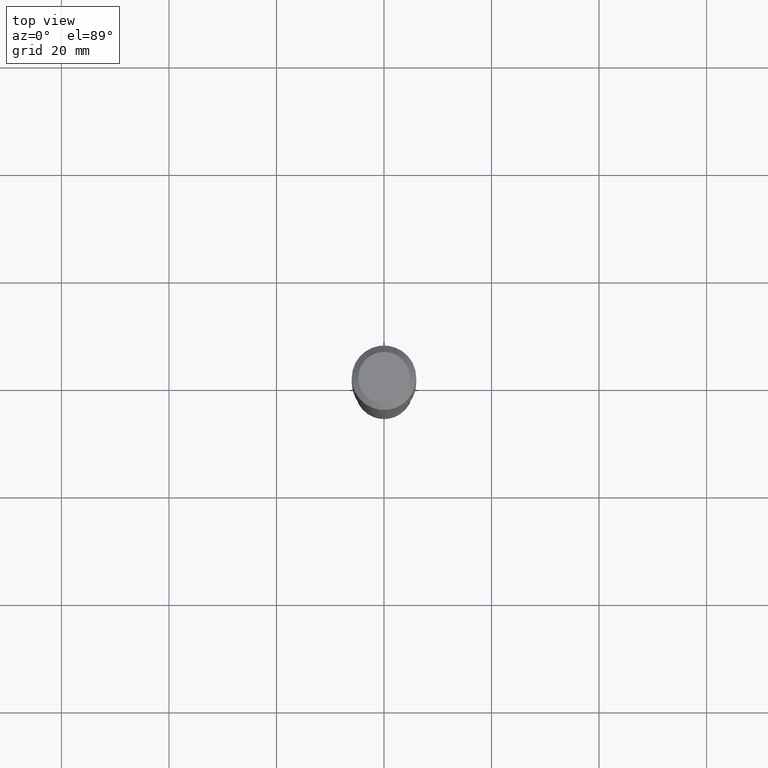
[diagram: clean part render]
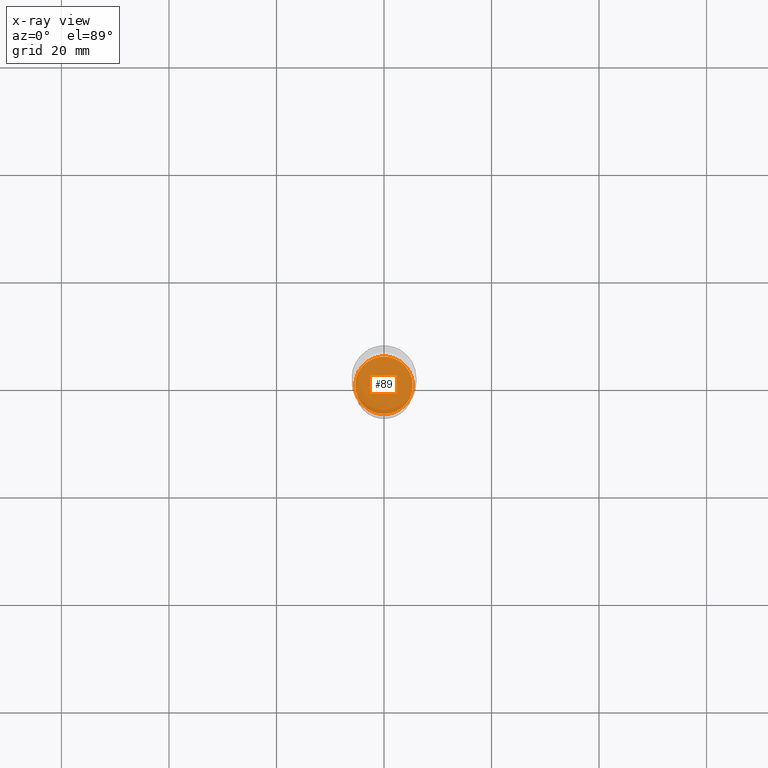
[diagram: x-ray — body ghosted, one internal face saturated and labeled with its STEP entity id]
A machine part, top view, then the same camera in x-ray: the body is ghosted and one INTERNAL B-rep face — a face not visible from any outside direction — is saturated and labeled: STEP entity #89.
In plain terms, the highlighted planar face has unit normal (-0, 0, 1).
Its self-contained STEP definition (entity closure, byte-faithful):
#8 = CIRCLE ( 'NONE', #137, 0.2104499999999999982 ) ;
#33 = ORIENTED_EDGE ( 'NONE', *, *, #252, .F. ) ;
#74 = CARTESIAN_POINT ( 'NONE',  ( 7.942882682489324976E-29, -1.134033138856253841E-14, -3.248000000000000220 ) ) ;
#89 = ADVANCED_FACE ( 'NONE', ( #321 ), #390, .F. ) ;
#137 = AXIS2_PLACEMENT_3D ( 'NONE', #360, #245, #322 ) ;
#151 = CARTESIAN_POINT ( 'NONE',  ( 7.942882682489324976E-29, -1.134033138856253841E-14, -3.248000000000000220 ) ) ;
#195 = DIRECTION ( 'NONE',  ( 1.000000000000000000, -6.982962677686269077E-15, 0.000000000000000000 ) ) ;
#245 = DIRECTION ( 'NONE',  ( -2.445468806185136597E-29, 3.491481338843145583E-15, 1.000000000000000000 ) ) ;
#252 = EDGE_CURVE ( 'NONE', #451, #518, #8, .T. ) ;
#321 = FACE_OUTER_BOUND ( 'NONE', #481, .T. ) ;
#322 = DIRECTION ( 'NONE',  ( 1.000000000000000000, -6.982962677686269077E-15, 0.000000000000000000 ) ) ;
#360 = CARTESIAN_POINT ( 'NONE',  ( 7.942882682489324976E-29, -1.134033138856253841E-14, -3.248000000000000220 ) ) ;
#384 = DIRECTION ( 'NONE',  ( 1.000000000000000000, -6.982962677686265922E-15, 4.876176775795935793E-29 ) ) ;
#385 = CARTESIAN_POINT ( 'NONE',  ( -0.2104499999999999982, -9.842344973981295396E-15, -3.248000000000000220 ) ) ;
#390 = PLANE ( 'NONE',  #474 ) ;
#393 = DIRECTION ( 'NONE',  ( -2.445468806185136597E-29, 3.491481338843145583E-15, 1.000000000000000000 ) ) ;
#414 = AXIS2_PLACEMENT_3D ( 'NONE', #151, #393, #195 ) ;
#429 = EDGE_CURVE ( 'NONE', #518, #451, #477, .T. ) ;
#437 = ORIENTED_EDGE ( 'NONE', *, *, #429, .F. ) ;
#451 = VERTEX_POINT ( 'NONE', #515 ) ;
#461 = DIRECTION ( 'NONE',  ( -2.438088387897960049E-29, 3.491481338843145188E-15, 1.000000000000000000 ) ) ;
#474 = AXIS2_PLACEMENT_3D ( 'NONE', #74, #461, #384 ) ;
#477 = CIRCLE ( 'NONE', #414, 0.2104499999999999982 ) ;
#481 = EDGE_LOOP ( 'NONE', ( #33, #437 ) ) ;
#515 = CARTESIAN_POINT ( 'NONE',  ( 0.2104499999999999982, -1.280989588408161455E-14, -3.248000000000000220 ) ) ;
#518 = VERTEX_POINT ( 'NONE', #385 ) ;